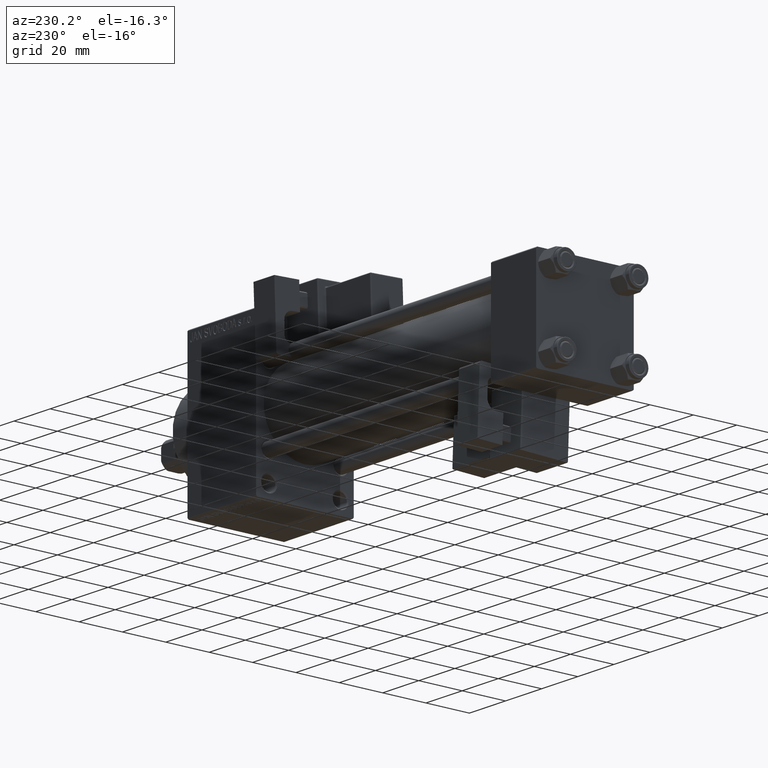
[diagram: clean part render]
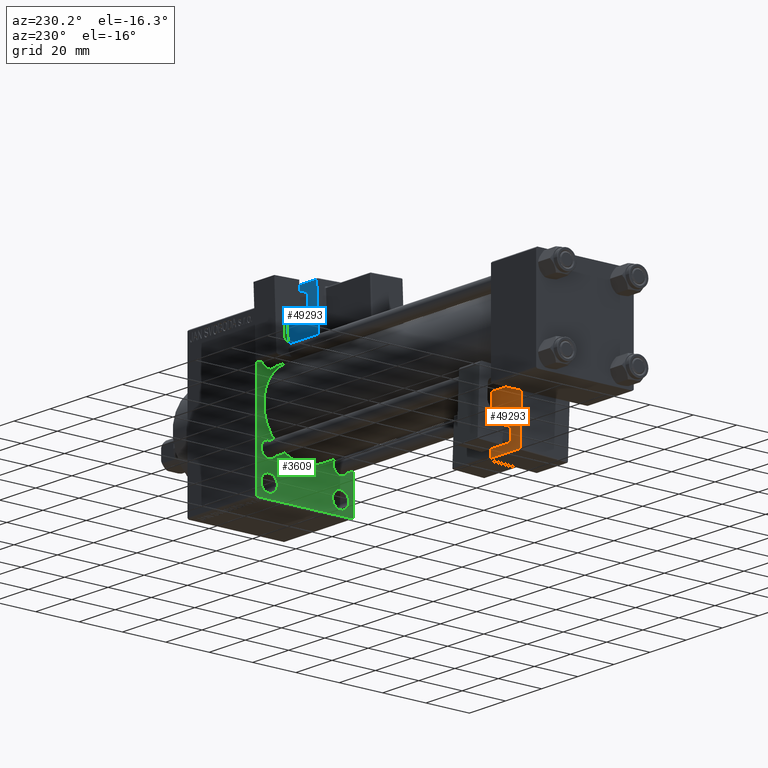
[diagram: same view with three faces highlighted in distinct colors, each labeled with its STEP entity id]
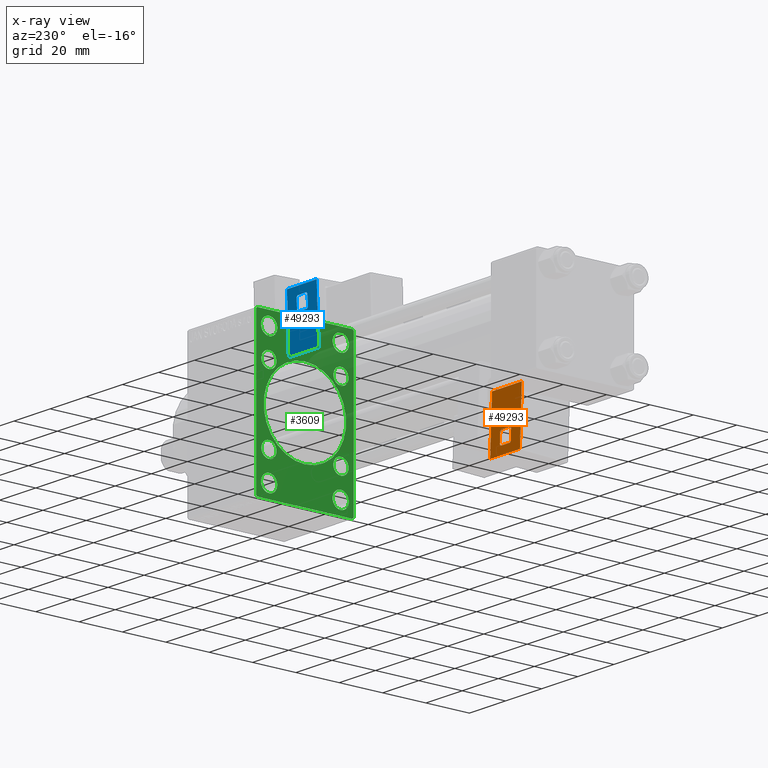
[diagram: x-ray of the same camera — body ghosted, the three highlighted faces saturated]
A machine part, auxiliary view with three faces highlighted in distinct colors.
The next image is the same camera in x-ray (body ghosted, the three faces saturated) — at least one of them is partly hidden behind the body in this view.
Their STEP definitions:

[orange] entity #49293 — the highlighted planar face has unit normal (0, 0.9994, 0.0353).
#77 = CARTESIAN_POINT ( 'NONE',  ( 8.750000000000000000, -11.75000000000000000, 24.49999999999999645 ) ) ;
#1164 = CARTESIAN_POINT ( 'NONE',  ( -3.000000000000000000, -11.75000000000000000, 3.500000000000022204 ) ) ;
#1455 = CARTESIAN_POINT ( 'NONE',  ( 3.000000000000000000, -11.75000000000000000, 8.500000000000000000 ) ) ;
#1975 = VECTOR ( 'NONE', #2006, 1000.000000000000000 ) ;
#2006 = DIRECTION ( 'NONE',  ( 0.000000000000000000, 0.000000000000000000, -1.000000000000000000 ) ) ;
#2221 = DIRECTION ( 'NONE',  ( 1.334402673828313093E-16, -0.000000000000000000, 1.000000000000000000 ) ) ;
#3006 = VECTOR ( 'NONE', #2221, 1000.000000000000000 ) ;
#3275 = FACE_OUTER_BOUND ( 'NONE', #39544, .T. ) ;
#3746 = CARTESIAN_POINT ( 'NONE',  ( -8.750000000000003553, -11.75000000000000000, -0.5000000000000002220 ) ) ;
#4682 = VERTEX_POINT ( 'NONE', #9760 ) ;
#5767 = CARTESIAN_POINT ( 'NONE',  ( -3.000000000000000000, -11.75000000000000000, 8.500000000000007105 ) ) ;
#6474 = VERTEX_POINT ( 'NONE', #35069 ) ;
#6721 = EDGE_CURVE ( 'NONE', #26137, #32866, #30774, .T. ) ;
#7799 = AXIS2_PLACEMENT_3D ( 'NONE', #21783, #44736, #15029 ) ;
#8461 = EDGE_CURVE ( 'NONE', #21969, #25839, #19092, .T. ) ;
#8873 = ORIENTED_EDGE ( 'NONE', *, *, #44061, .T. ) ;
#8908 = DIRECTION ( 'NONE',  ( -1.000000000000000000, 0.000000000000000000, 0.000000000000000000 ) ) ;
#9519 = DIRECTION ( 'NONE',  ( -0.7071067811865426878, -0.000000000000000000, 0.7071067811865524577 ) ) ;
#9760 = CARTESIAN_POINT ( 'NONE',  ( 2.500000000000006661, -11.75000000000000000, 9.000000000000001776 ) ) ;
#10228 = EDGE_CURVE ( 'NONE', #27489, #10450, #29478, .T. ) ;
#10450 = VERTEX_POINT ( 'NONE', #46942 ) ;
#10850 = EDGE_CURVE ( 'NONE', #32866, #19204, #29357, .T. ) ;
#11079 = CARTESIAN_POINT ( 'NONE',  ( 3.000000000000000888, -11.75000000000000000, 3.500000000000008438 ) ) ;
#11595 = DIRECTION ( 'NONE',  ( 0.7071067811865472397, -0.000000000000000000, -0.7071067811865479058 ) ) ;
#11704 = VERTEX_POINT ( 'NONE', #1164 ) ;
#11848 = LINE ( 'NONE', #33545, #29922 ) ;
#11868 = DIRECTION ( 'NONE',  ( 1.000000000000000000, -0.000000000000000000, 7.228014483236695816E-17 ) ) ;
#12002 = DIRECTION ( 'NONE',  ( -1.000000000000000000, 0.000000000000000000, -0.000000000000000000 ) ) ;
#12403 = LINE ( 'NONE', #32090, #36440 ) ;
#12490 = LINE ( 'NONE', #3746, #34774 ) ;
#12851 = ORIENTED_EDGE ( 'NONE', *, *, #21499, .T. ) ;
#14265 = DIRECTION ( 'NONE',  ( -0.7071067811865524577, 0.000000000000000000, -0.7071067811865426878 ) ) ;
#15029 = DIRECTION ( 'NONE',  ( 0.000000000000000000, -0.000000000000000000, 1.000000000000000000 ) ) ;
#15586 = VECTOR ( 'NONE', #11868, 1000.000000000000000 ) ;
#16317 = ORIENTED_EDGE ( 'NONE', *, *, #26459, .T. ) ;
#17162 = EDGE_CURVE ( 'NONE', #10450, #11704, #28496, .T. ) ;
#17421 = ORIENTED_EDGE ( 'NONE', *, *, #17162, .T. ) ;
#17883 = DIRECTION ( 'NONE',  ( -1.445602896647339163E-16, -0.000000000000000000, 1.000000000000000000 ) ) ;
#18582 = VECTOR ( 'NONE', #42027, 1000.000000000000000 ) ;
#19092 = LINE ( 'NONE', #77, #18582 ) ;
#19177 = CARTESIAN_POINT ( 'NONE',  ( 2.499999999999993339, -11.75000000000000000, 3.000000000000000888 ) ) ;
#19204 = VERTEX_POINT ( 'NONE', #1455 ) ;
#19505 = VECTOR ( 'NONE', #42485, 1000.000000000000000 ) ;
#19542 = LINE ( 'NONE', #26534, #19505 ) ;
#19819 = EDGE_CURVE ( 'NONE', #33664, #6474, #12490, .T. ) ;
#20710 = VECTOR ( 'NONE', #30523, 1000.000000000000114 ) ;
#20870 = ORIENTED_EDGE ( 'NONE', *, *, #38956, .T. ) ;
#21017 = CARTESIAN_POINT ( 'NONE',  ( -3.000000000000000000, -11.75000000000000000, 9.000000000000001776 ) ) ;
#21234 = LINE ( 'NONE', #36429, #3006 ) ;
#21499 = EDGE_CURVE ( 'NONE', #4682, #27489, #12403, .T. ) ;
#21783 = CARTESIAN_POINT ( 'NONE',  ( 0.000000000000000000, -11.75000000000000000, 0.000000000000000000 ) ) ;
#21969 = VERTEX_POINT ( 'NONE', #48009 ) ;
#23534 = CARTESIAN_POINT ( 'NONE',  ( -2.499999999999976907, -11.75000000000000000, 3.000000000000000444 ) ) ;
#24792 = CARTESIAN_POINT ( 'NONE',  ( -2.499999999999999556, -11.75000000000000000, 9.000000000000001776 ) ) ;
#25712 = VECTOR ( 'NONE', #17883, 1000.000000000000000 ) ;
#25839 = VERTEX_POINT ( 'NONE', #36210 ) ;
#26137 = VERTEX_POINT ( 'NONE', #19177 ) ;
#26459 = EDGE_CURVE ( 'NONE', #19204, #4682, #28475, .T. ) ;
#26534 = CARTESIAN_POINT ( 'NONE',  ( 8.250000000000003553, -11.75000000000000000, -1.000000000000000888 ) ) ;
#26833 = EDGE_CURVE ( 'NONE', #6474, #21969, #21234, .T. ) ;
#27489 = VERTEX_POINT ( 'NONE', #24792 ) ;
#28475 = LINE ( 'NONE', #43699, #40451 ) ;
#28496 = LINE ( 'NONE', #21017, #1975 ) ;
#28821 = CARTESIAN_POINT ( 'NONE',  ( 8.250000000000003553, -11.75000000000000000, -0.5000000000000002220 ) ) ;
#29357 = LINE ( 'NONE', #40083, #25712 ) ;
#29478 = LINE ( 'NONE', #5767, #36138 ) ;
#29738 = PLANE ( 'NONE',  #7799 ) ;
#29862 = VERTEX_POINT ( 'NONE', #23534 ) ;
#29922 = VECTOR ( 'NONE', #11595, 1000.000000000000000 ) ;
#30523 = DIRECTION ( 'NONE',  ( 0.7071067811865474617, -0.000000000000000000, 0.7071067811865474617 ) ) ;
#30530 = CARTESIAN_POINT ( 'NONE',  ( 3.000000000000000888, -11.75000000000000000, 3.500000000000008438 ) ) ;
#30774 = LINE ( 'NONE', #11079, #20710 ) ;
#30824 = LINE ( 'NONE', #46065, #15586 ) ;
#32090 = CARTESIAN_POINT ( 'NONE',  ( 3.000000000000000000, -11.75000000000000000, 9.000000000000001776 ) ) ;
#32866 = VERTEX_POINT ( 'NONE', #30530 ) ;
#33545 = CARTESIAN_POINT ( 'NONE',  ( -2.499999999999978684, -11.75000000000000000, 3.000000000000000444 ) ) ;
#33664 = VERTEX_POINT ( 'NONE', #28821 ) ;
#34774 = VECTOR ( 'NONE', #12002, 1000.000000000000000 ) ;
#35069 = CARTESIAN_POINT ( 'NONE',  ( -8.250000000000003553, -11.75000000000000000, -0.5000000000000002220 ) ) ;
#36138 = VECTOR ( 'NONE', #14265, 1000.000000000000000 ) ;
#36210 = CARTESIAN_POINT ( 'NONE',  ( 8.250000000000000000, -11.75000000000000000, 24.49999999999999645 ) ) ;
#36429 = CARTESIAN_POINT ( 'NONE',  ( -8.250000000000000000, -11.75000000000000000, 25.00000000000000000 ) ) ;
#36440 = VECTOR ( 'NONE', #8908, 1000.000000000000000 ) ;
#37774 = ORIENTED_EDGE ( 'NONE', *, *, #8461, .T. ) ;
#37840 = ORIENTED_EDGE ( 'NONE', *, *, #19819, .T. ) ;
#38566 = ORIENTED_EDGE ( 'NONE', *, *, #40607, .T. ) ;
#38956 = EDGE_CURVE ( 'NONE', #25839, #33664, #19542, .T. ) ;
#39544 = EDGE_LOOP ( 'NONE', ( #37840, #44919, #37774, #20870 ) ) ;
#40083 = CARTESIAN_POINT ( 'NONE',  ( 3.000000000000000000, -11.75000000000000000, 9.000000000000001776 ) ) ;
#40451 = VECTOR ( 'NONE', #9519, 1000.000000000000000 ) ;
#40607 = EDGE_CURVE ( 'NONE', #29862, #26137, #30824, .T. ) ;
#42027 = DIRECTION ( 'NONE',  ( 1.000000000000000000, -0.000000000000000000, -1.982541115402065110E-16 ) ) ;
#42485 = DIRECTION ( 'NONE',  ( 1.334402673828313339E-16, -0.000000000000000000, -1.000000000000000000 ) ) ;
#42561 = ORIENTED_EDGE ( 'NONE', *, *, #10850, .T. ) ;
#42939 = ORIENTED_EDGE ( 'NONE', *, *, #6721, .T. ) ;
#43676 = EDGE_LOOP ( 'NONE', ( #42561, #16317, #12851, #48562, #17421, #8873, #38566, #42939 ) ) ;
#43699 = CARTESIAN_POINT ( 'NONE',  ( 2.500000000000006661, -11.75000000000000000, 9.000000000000001776 ) ) ;
#44061 = EDGE_CURVE ( 'NONE', #11704, #29862, #11848, .T. ) ;
#44736 = DIRECTION ( 'NONE',  ( 0.000000000000000000, 1.000000000000000000, 0.000000000000000000 ) ) ;
#44919 = ORIENTED_EDGE ( 'NONE', *, *, #26833, .T. ) ;
#46065 = CARTESIAN_POINT ( 'NONE',  ( 3.000000000000000888, -11.75000000000000000, 3.000000000000000888 ) ) ;
#46942 = CARTESIAN_POINT ( 'NONE',  ( -3.000000000000000000, -11.75000000000000000, 8.500000000000007105 ) ) ;
#48009 = CARTESIAN_POINT ( 'NONE',  ( -8.250000000000000000, -11.75000000000000000, 24.50000000000000000 ) ) ;
#48562 = ORIENTED_EDGE ( 'NONE', *, *, #10228, .T. ) ;
#49233 = FACE_BOUND ( 'NONE', #43676, .T. ) ;
#49293 = ADVANCED_FACE ( 'NONE', ( #3275, #49233 ), #29738, .T. ) ;

[blue] entity #49293 — the highlighted planar face has unit normal (0, 0.9994, -0.0353).
#77 = CARTESIAN_POINT ( 'NONE',  ( 8.750000000000000000, -11.75000000000000000, 24.49999999999999645 ) ) ;
#1164 = CARTESIAN_POINT ( 'NONE',  ( -3.000000000000000000, -11.75000000000000000, 3.500000000000022204 ) ) ;
#1455 = CARTESIAN_POINT ( 'NONE',  ( 3.000000000000000000, -11.75000000000000000, 8.500000000000000000 ) ) ;
#1975 = VECTOR ( 'NONE', #2006, 1000.000000000000000 ) ;
#2006 = DIRECTION ( 'NONE',  ( 0.000000000000000000, 0.000000000000000000, -1.000000000000000000 ) ) ;
#2221 = DIRECTION ( 'NONE',  ( 1.334402673828313093E-16, -0.000000000000000000, 1.000000000000000000 ) ) ;
#3006 = VECTOR ( 'NONE', #2221, 1000.000000000000000 ) ;
#3275 = FACE_OUTER_BOUND ( 'NONE', #39544, .T. ) ;
#3746 = CARTESIAN_POINT ( 'NONE',  ( -8.750000000000003553, -11.75000000000000000, -0.5000000000000002220 ) ) ;
#4682 = VERTEX_POINT ( 'NONE', #9760 ) ;
#5767 = CARTESIAN_POINT ( 'NONE',  ( -3.000000000000000000, -11.75000000000000000, 8.500000000000007105 ) ) ;
#6474 = VERTEX_POINT ( 'NONE', #35069 ) ;
#6721 = EDGE_CURVE ( 'NONE', #26137, #32866, #30774, .T. ) ;
#7799 = AXIS2_PLACEMENT_3D ( 'NONE', #21783, #44736, #15029 ) ;
#8461 = EDGE_CURVE ( 'NONE', #21969, #25839, #19092, .T. ) ;
#8873 = ORIENTED_EDGE ( 'NONE', *, *, #44061, .T. ) ;
#8908 = DIRECTION ( 'NONE',  ( -1.000000000000000000, 0.000000000000000000, 0.000000000000000000 ) ) ;
#9519 = DIRECTION ( 'NONE',  ( -0.7071067811865426878, -0.000000000000000000, 0.7071067811865524577 ) ) ;
#9760 = CARTESIAN_POINT ( 'NONE',  ( 2.500000000000006661, -11.75000000000000000, 9.000000000000001776 ) ) ;
#10228 = EDGE_CURVE ( 'NONE', #27489, #10450, #29478, .T. ) ;
#10450 = VERTEX_POINT ( 'NONE', #46942 ) ;
#10850 = EDGE_CURVE ( 'NONE', #32866, #19204, #29357, .T. ) ;
#11079 = CARTESIAN_POINT ( 'NONE',  ( 3.000000000000000888, -11.75000000000000000, 3.500000000000008438 ) ) ;
#11595 = DIRECTION ( 'NONE',  ( 0.7071067811865472397, -0.000000000000000000, -0.7071067811865479058 ) ) ;
#11704 = VERTEX_POINT ( 'NONE', #1164 ) ;
#11848 = LINE ( 'NONE', #33545, #29922 ) ;
#11868 = DIRECTION ( 'NONE',  ( 1.000000000000000000, -0.000000000000000000, 7.228014483236695816E-17 ) ) ;
#12002 = DIRECTION ( 'NONE',  ( -1.000000000000000000, 0.000000000000000000, -0.000000000000000000 ) ) ;
#12403 = LINE ( 'NONE', #32090, #36440 ) ;
#12490 = LINE ( 'NONE', #3746, #34774 ) ;
#12851 = ORIENTED_EDGE ( 'NONE', *, *, #21499, .T. ) ;
#14265 = DIRECTION ( 'NONE',  ( -0.7071067811865524577, 0.000000000000000000, -0.7071067811865426878 ) ) ;
#15029 = DIRECTION ( 'NONE',  ( 0.000000000000000000, -0.000000000000000000, 1.000000000000000000 ) ) ;
#15586 = VECTOR ( 'NONE', #11868, 1000.000000000000000 ) ;
#16317 = ORIENTED_EDGE ( 'NONE', *, *, #26459, .T. ) ;
#17162 = EDGE_CURVE ( 'NONE', #10450, #11704, #28496, .T. ) ;
#17421 = ORIENTED_EDGE ( 'NONE', *, *, #17162, .T. ) ;
#17883 = DIRECTION ( 'NONE',  ( -1.445602896647339163E-16, -0.000000000000000000, 1.000000000000000000 ) ) ;
#18582 = VECTOR ( 'NONE', #42027, 1000.000000000000000 ) ;
#19092 = LINE ( 'NONE', #77, #18582 ) ;
#19177 = CARTESIAN_POINT ( 'NONE',  ( 2.499999999999993339, -11.75000000000000000, 3.000000000000000888 ) ) ;
#19204 = VERTEX_POINT ( 'NONE', #1455 ) ;
#19505 = VECTOR ( 'NONE', #42485, 1000.000000000000000 ) ;
#19542 = LINE ( 'NONE', #26534, #19505 ) ;
#19819 = EDGE_CURVE ( 'NONE', #33664, #6474, #12490, .T. ) ;
#20710 = VECTOR ( 'NONE', #30523, 1000.000000000000114 ) ;
#20870 = ORIENTED_EDGE ( 'NONE', *, *, #38956, .T. ) ;
#21017 = CARTESIAN_POINT ( 'NONE',  ( -3.000000000000000000, -11.75000000000000000, 9.000000000000001776 ) ) ;
#21234 = LINE ( 'NONE', #36429, #3006 ) ;
#21499 = EDGE_CURVE ( 'NONE', #4682, #27489, #12403, .T. ) ;
#21783 = CARTESIAN_POINT ( 'NONE',  ( 0.000000000000000000, -11.75000000000000000, 0.000000000000000000 ) ) ;
#21969 = VERTEX_POINT ( 'NONE', #48009 ) ;
#23534 = CARTESIAN_POINT ( 'NONE',  ( -2.499999999999976907, -11.75000000000000000, 3.000000000000000444 ) ) ;
#24792 = CARTESIAN_POINT ( 'NONE',  ( -2.499999999999999556, -11.75000000000000000, 9.000000000000001776 ) ) ;
#25712 = VECTOR ( 'NONE', #17883, 1000.000000000000000 ) ;
#25839 = VERTEX_POINT ( 'NONE', #36210 ) ;
#26137 = VERTEX_POINT ( 'NONE', #19177 ) ;
#26459 = EDGE_CURVE ( 'NONE', #19204, #4682, #28475, .T. ) ;
#26534 = CARTESIAN_POINT ( 'NONE',  ( 8.250000000000003553, -11.75000000000000000, -1.000000000000000888 ) ) ;
#26833 = EDGE_CURVE ( 'NONE', #6474, #21969, #21234, .T. ) ;
#27489 = VERTEX_POINT ( 'NONE', #24792 ) ;
#28475 = LINE ( 'NONE', #43699, #40451 ) ;
#28496 = LINE ( 'NONE', #21017, #1975 ) ;
#28821 = CARTESIAN_POINT ( 'NONE',  ( 8.250000000000003553, -11.75000000000000000, -0.5000000000000002220 ) ) ;
#29357 = LINE ( 'NONE', #40083, #25712 ) ;
#29478 = LINE ( 'NONE', #5767, #36138 ) ;
#29738 = PLANE ( 'NONE',  #7799 ) ;
#29862 = VERTEX_POINT ( 'NONE', #23534 ) ;
#29922 = VECTOR ( 'NONE', #11595, 1000.000000000000000 ) ;
#30523 = DIRECTION ( 'NONE',  ( 0.7071067811865474617, -0.000000000000000000, 0.7071067811865474617 ) ) ;
#30530 = CARTESIAN_POINT ( 'NONE',  ( 3.000000000000000888, -11.75000000000000000, 3.500000000000008438 ) ) ;
#30774 = LINE ( 'NONE', #11079, #20710 ) ;
#30824 = LINE ( 'NONE', #46065, #15586 ) ;
#32090 = CARTESIAN_POINT ( 'NONE',  ( 3.000000000000000000, -11.75000000000000000, 9.000000000000001776 ) ) ;
#32866 = VERTEX_POINT ( 'NONE', #30530 ) ;
#33545 = CARTESIAN_POINT ( 'NONE',  ( -2.499999999999978684, -11.75000000000000000, 3.000000000000000444 ) ) ;
#33664 = VERTEX_POINT ( 'NONE', #28821 ) ;
#34774 = VECTOR ( 'NONE', #12002, 1000.000000000000000 ) ;
#35069 = CARTESIAN_POINT ( 'NONE',  ( -8.250000000000003553, -11.75000000000000000, -0.5000000000000002220 ) ) ;
#36138 = VECTOR ( 'NONE', #14265, 1000.000000000000000 ) ;
#36210 = CARTESIAN_POINT ( 'NONE',  ( 8.250000000000000000, -11.75000000000000000, 24.49999999999999645 ) ) ;
#36429 = CARTESIAN_POINT ( 'NONE',  ( -8.250000000000000000, -11.75000000000000000, 25.00000000000000000 ) ) ;
#36440 = VECTOR ( 'NONE', #8908, 1000.000000000000000 ) ;
#37774 = ORIENTED_EDGE ( 'NONE', *, *, #8461, .T. ) ;
#37840 = ORIENTED_EDGE ( 'NONE', *, *, #19819, .T. ) ;
#38566 = ORIENTED_EDGE ( 'NONE', *, *, #40607, .T. ) ;
#38956 = EDGE_CURVE ( 'NONE', #25839, #33664, #19542, .T. ) ;
#39544 = EDGE_LOOP ( 'NONE', ( #37840, #44919, #37774, #20870 ) ) ;
#40083 = CARTESIAN_POINT ( 'NONE',  ( 3.000000000000000000, -11.75000000000000000, 9.000000000000001776 ) ) ;
#40451 = VECTOR ( 'NONE', #9519, 1000.000000000000000 ) ;
#40607 = EDGE_CURVE ( 'NONE', #29862, #26137, #30824, .T. ) ;
#42027 = DIRECTION ( 'NONE',  ( 1.000000000000000000, -0.000000000000000000, -1.982541115402065110E-16 ) ) ;
#42485 = DIRECTION ( 'NONE',  ( 1.334402673828313339E-16, -0.000000000000000000, -1.000000000000000000 ) ) ;
#42561 = ORIENTED_EDGE ( 'NONE', *, *, #10850, .T. ) ;
#42939 = ORIENTED_EDGE ( 'NONE', *, *, #6721, .T. ) ;
#43676 = EDGE_LOOP ( 'NONE', ( #42561, #16317, #12851, #48562, #17421, #8873, #38566, #42939 ) ) ;
#43699 = CARTESIAN_POINT ( 'NONE',  ( 2.500000000000006661, -11.75000000000000000, 9.000000000000001776 ) ) ;
#44061 = EDGE_CURVE ( 'NONE', #11704, #29862, #11848, .T. ) ;
#44736 = DIRECTION ( 'NONE',  ( 0.000000000000000000, 1.000000000000000000, 0.000000000000000000 ) ) ;
#44919 = ORIENTED_EDGE ( 'NONE', *, *, #26833, .T. ) ;
#46065 = CARTESIAN_POINT ( 'NONE',  ( 3.000000000000000888, -11.75000000000000000, 3.000000000000000888 ) ) ;
#46942 = CARTESIAN_POINT ( 'NONE',  ( -3.000000000000000000, -11.75000000000000000, 8.500000000000007105 ) ) ;
#48009 = CARTESIAN_POINT ( 'NONE',  ( -8.250000000000000000, -11.75000000000000000, 24.50000000000000000 ) ) ;
#48562 = ORIENTED_EDGE ( 'NONE', *, *, #10228, .T. ) ;
#49233 = FACE_BOUND ( 'NONE', #43676, .T. ) ;
#49293 = ADVANCED_FACE ( 'NONE', ( #3275, #49233 ), #29738, .T. ) ;

[green] entity #3609 — the highlighted planar face has unit normal (-1, 0, 0).
#46 = CARTESIAN_POINT ( 'NONE',  ( 155.0000000000000000, -16.50000000000000000, -28.99999999999999289 ) ) ;
#200 = CIRCLE ( 'NONE', #7416, 3.749999999999923617 ) ;
#316 = VERTEX_POINT ( 'NONE', #39200 ) ;
#522 = CARTESIAN_POINT ( 'NONE',  ( 155.0000000000000000, 16.50000000000000000, -32.74999999999991473 ) ) ;
#867 = DIRECTION ( 'NONE',  ( 0.000000000000000000, -1.000000000000000000, 0.000000000000000000 ) ) ;
#1219 = AXIS2_PLACEMENT_3D ( 'NONE', #48557, #36553, #40045 ) ;
#1334 = DIRECTION ( 'NONE',  ( -0.000000000000000000, 0.000000000000000000, 1.000000000000000000 ) ) ;
#1380 = CARTESIAN_POINT ( 'NONE',  ( 155.0000000000000000, 28.49999999999999645, -28.49999999999999645 ) ) ;
#1439 = AXIS2_PLACEMENT_3D ( 'NONE', #31179, #4456, #23705 ) ;
#1572 = AXIS2_PLACEMENT_3D ( 'NONE', #3186, #13948, #14199 ) ;
#1583 = FACE_BOUND ( 'NONE', #7346, .T. ) ;
#1760 = LINE ( 'NONE', #35736, #10634 ) ;
#1921 = EDGE_CURVE ( 'NONE', #30669, #19883, #6292, .T. ) ;
#2059 = FACE_BOUND ( 'NONE', #26085, .T. ) ;
#2477 = ORIENTED_EDGE ( 'NONE', *, *, #38392, .T. ) ;
#2478 = CARTESIAN_POINT ( 'NONE',  ( 155.0000000000000000, -16.59999999999999076, -20.10000000000001208 ) ) ;
#2531 = VERTEX_POINT ( 'NONE', #46556 ) ;
#2624 = EDGE_CURVE ( 'NONE', #2531, #316, #40245, .T. ) ;
#3186 = CARTESIAN_POINT ( 'NONE',  ( 155.0000000000000000, -16.50000000000000000, 29.00000000000000711 ) ) ;
#3321 = ORIENTED_EDGE ( 'NONE', *, *, #8539, .T. ) ;
#3322 = VERTEX_POINT ( 'NONE', #8738 ) ;
#3425 = ORIENTED_EDGE ( 'NONE', *, *, #2624, .T. ) ;
#3435 = EDGE_CURVE ( 'NONE', #19883, #30669, #23138, .T. ) ;
#3518 = CIRCLE ( 'NONE', #45805, 3.500000000000006661 ) ;
#3609 = ADVANCED_FACE ( 'NONE', ( #20588, #9829, #2059, #40251, #35797, #28795, #32042, #36517, #1583, #47544 ), #16838, .T. ) ;
#3614 = EDGE_CURVE ( 'NONE', #13554, #23283, #30275, .T. ) ;
#3722 = VERTEX_POINT ( 'NONE', #26531 ) ;
#3824 = VERTEX_POINT ( 'NONE', #12546 ) ;
#3933 = VECTOR ( 'NONE', #39516, 1000.000000000000114 ) ;
#3979 = AXIS2_PLACEMENT_3D ( 'NONE', #26128, #38325, #39242 ) ;
#4236 = VECTOR ( 'NONE', #44970, 1000.000000000000114 ) ;
#4294 = EDGE_CURVE ( 'NONE', #3322, #3722, #15931, .T. ) ;
#4400 = EDGE_CURVE ( 'NONE', #18774, #24965, #38249, .T. ) ;
#4456 = DIRECTION ( 'NONE',  ( 1.000000000000000000, 0.000000000000000000, 0.000000000000000000 ) ) ;
#4521 = ORIENTED_EDGE ( 'NONE', *, *, #44012, .T. ) ;
#5061 = ORIENTED_EDGE ( 'NONE', *, *, #1921, .T. ) ;
#5362 = CARTESIAN_POINT ( 'NONE',  ( 155.0000000000000000, 16.59999999999999787, 16.60000000000000497 ) ) ;
#5416 = DIRECTION ( 'NONE',  ( 1.000000000000000000, 0.000000000000000000, 0.000000000000000000 ) ) ;
#5583 = CARTESIAN_POINT ( 'NONE',  ( 155.0000000000000000, 16.59999999999999787, -16.60000000000000497 ) ) ;
#5970 = ORIENTED_EDGE ( 'NONE', *, *, #31470, .T. ) ;
#6292 = CIRCLE ( 'NONE', #21454, 3.749999999999916511 ) ;
#6875 = EDGE_LOOP ( 'NONE', ( #21478, #33245, #27174, #20157, #18962, #3425, #47339, #29860 ) ) ;
#7156 = AXIS2_PLACEMENT_3D ( 'NONE', #24575, #32283, #1334 ) ;
#7346 = EDGE_LOOP ( 'NONE', ( #30693, #3321 ) ) ;
#7416 = AXIS2_PLACEMENT_3D ( 'NONE', #37229, #10796, #26026 ) ;
#7466 = ORIENTED_EDGE ( 'NONE', *, *, #31629, .T. ) ;
#8124 = VERTEX_POINT ( 'NONE', #28098 ) ;
#8539 = EDGE_CURVE ( 'NONE', #45179, #19566, #32879, .T. ) ;
#8600 = EDGE_CURVE ( 'NONE', #24965, #18774, #200, .T. ) ;
#8738 = CARTESIAN_POINT ( 'NONE',  ( 155.0000000000000000, 16.59999999999999787, 13.09999999999999609 ) ) ;
#9060 = CARTESIAN_POINT ( 'NONE',  ( 155.0000000000000000, -16.50000000000000000, -32.74999999999991473 ) ) ;
#9336 = DIRECTION ( 'NONE',  ( 0.000000000000000000, 0.000000000000000000, 1.000000000000000000 ) ) ;
#9596 = DIRECTION ( 'NONE',  ( 0.000000000000000000, 0.000000000000000000, 1.000000000000000000 ) ) ;
#9722 = CARTESIAN_POINT ( 'NONE',  ( 155.0000000000000000, -16.50000000000000000, 25.25000000000009237 ) ) ;
#9829 = FACE_BOUND ( 'NONE', #22836, .T. ) ;
#10177 = LINE ( 'NONE', #44855, #25123 ) ;
#10186 = EDGE_CURVE ( 'NONE', #316, #18834, #1760, .T. ) ;
#10470 = ORIENTED_EDGE ( 'NONE', *, *, #32521, .T. ) ;
#10634 = VECTOR ( 'NONE', #22867, 1000.000000000000000 ) ;
#10796 = DIRECTION ( 'NONE',  ( 1.000000000000000000, 0.000000000000000000, 0.000000000000000000 ) ) ;
#10991 = CIRCLE ( 'NONE', #41243, 3.500000000000003109 ) ;
#11006 = DIRECTION ( 'NONE',  ( 1.000000000000000000, 0.000000000000000000, 0.000000000000000000 ) ) ;
#11061 = DIRECTION ( 'NONE',  ( 1.000000000000000000, 0.000000000000000000, 0.000000000000000000 ) ) ;
#11894 = CARTESIAN_POINT ( 'NONE',  ( 155.0000000000000000, 22.49999999999999645, -35.00000000000000000 ) ) ;
#12546 = CARTESIAN_POINT ( 'NONE',  ( 155.0000000000000000, 16.50000000000000000, 25.25000000000008882 ) ) ;
#12806 = CARTESIAN_POINT ( 'NONE',  ( 155.0000000000000000, -16.59999999999999076, 20.10000000000001208 ) ) ;
#12957 = AXIS2_PLACEMENT_3D ( 'NONE', #20915, #5416, #24172 ) ;
#13165 = EDGE_CURVE ( 'NONE', #8124, #14160, #16191, .T. ) ;
#13346 = CARTESIAN_POINT ( 'NONE',  ( 155.0000000000000000, -22.50000000000000355, -34.50000000000000000 ) ) ;
#13381 = VERTEX_POINT ( 'NONE', #13535 ) ;
#13445 = CIRCLE ( 'NONE', #1439, 3.500000000000006661 ) ;
#13535 = CARTESIAN_POINT ( 'NONE',  ( 155.0000000000000000, 16.50000000000000000, 32.74999999999991473 ) ) ;
#13554 = VERTEX_POINT ( 'NONE', #20963 ) ;
#13948 = DIRECTION ( 'NONE',  ( 1.000000000000000000, 0.000000000000000000, 0.000000000000000000 ) ) ;
#13963 = DIRECTION ( 'NONE',  ( 0.000000000000000000, -1.000000000000000000, 0.000000000000000000 ) ) ;
#14101 = ORIENTED_EDGE ( 'NONE', *, *, #4400, .T. ) ;
#14160 = VERTEX_POINT ( 'NONE', #9060 ) ;
#14199 = DIRECTION ( 'NONE',  ( 0.000000000000000000, 0.000000000000000000, 1.000000000000000000 ) ) ;
#14793 = CIRCLE ( 'NONE', #1219, 3.500000000000003109 ) ;
#15344 = CARTESIAN_POINT ( 'NONE',  ( 155.0000000000000000, -2.752562955852396712E-16, -19.00000000000000000 ) ) ;
#15931 = CIRCLE ( 'NONE', #28673, 3.500000000000006661 ) ;
#16191 = CIRCLE ( 'NONE', #47313, 3.749999999999923617 ) ;
#16394 = EDGE_LOOP ( 'NONE', ( #4521, #43740 ) ) ;
#16838 = PLANE ( 'NONE',  #7156 ) ;
#17115 = EDGE_LOOP ( 'NONE', ( #2477, #27779 ) ) ;
#17396 = DIRECTION ( 'NONE',  ( 0.000000000000000000, 0.000000000000000000, 1.000000000000000000 ) ) ;
#17766 = VERTEX_POINT ( 'NONE', #22688 ) ;
#17782 = VECTOR ( 'NONE', #37773, 1000.000000000000000 ) ;
#18015 = DIRECTION ( 'NONE',  ( 1.000000000000000000, 0.000000000000000000, 0.000000000000000000 ) ) ;
#18514 = CARTESIAN_POINT ( 'NONE',  ( 155.0000000000000000, -28.49999999999999645, 28.49999999999999645 ) ) ;
#18581 = ORIENTED_EDGE ( 'NONE', *, *, #3435, .T. ) ;
#18757 = LINE ( 'NONE', #18514, #4236 ) ;
#18774 = VERTEX_POINT ( 'NONE', #36993 ) ;
#18834 = VERTEX_POINT ( 'NONE', #22304 ) ;
#18962 = ORIENTED_EDGE ( 'NONE', *, *, #34896, .F. ) ;
#19070 = LINE ( 'NONE', #45029, #17782 ) ;
#19146 = CIRCLE ( 'NONE', #3979, 3.749999999999920064 ) ;
#19332 = ORIENTED_EDGE ( 'NONE', *, *, #33360, .T. ) ;
#19566 = VERTEX_POINT ( 'NONE', #29091 ) ;
#19883 = VERTEX_POINT ( 'NONE', #9722 ) ;
#20157 = ORIENTED_EDGE ( 'NONE', *, *, #35859, .T. ) ;
#20228 = CARTESIAN_POINT ( 'NONE',  ( 155.0000000000000000, 22.49999999999999645, 35.00000000000000000 ) ) ;
#20588 = FACE_BOUND ( 'NONE', #24101, .T. ) ;
#20618 = DIRECTION ( 'NONE',  ( 0.000000000000000000, 0.000000000000000000, 1.000000000000000000 ) ) ;
#20915 = CARTESIAN_POINT ( 'NONE',  ( 155.0000000000000000, -16.50000000000000000, -28.99999999999999289 ) ) ;
#20963 = CARTESIAN_POINT ( 'NONE',  ( 155.0000000000000000, 16.59999999999999787, -20.10000000000000853 ) ) ;
#21355 = CIRCLE ( 'NONE', #27722, 3.500000000000006661 ) ;
#21454 = AXIS2_PLACEMENT_3D ( 'NONE', #25289, #48256, #25543 ) ;
#21478 = ORIENTED_EDGE ( 'NONE', *, *, #32702, .T. ) ;
#21823 = DIRECTION ( 'NONE',  ( 0.000000000000000000, 0.000000000000000000, 1.000000000000000000 ) ) ;
#22254 = AXIS2_PLACEMENT_3D ( 'NONE', #35108, #26887, #23402 ) ;
#22304 = CARTESIAN_POINT ( 'NONE',  ( 155.0000000000000000, 22.49999999999999645, -34.50000000000000000 ) ) ;
#22688 = CARTESIAN_POINT ( 'NONE',  ( 155.0000000000000000, -21.99999999999998934, -35.00000000000000000 ) ) ;
#22836 = EDGE_LOOP ( 'NONE', ( #22865, #19332 ) ) ;
#22865 = ORIENTED_EDGE ( 'NONE', *, *, #13165, .T. ) ;
#22867 = DIRECTION ( 'NONE',  ( 0.000000000000000000, 0.000000000000000000, -1.000000000000000000 ) ) ;
#22985 = CARTESIAN_POINT ( 'NONE',  ( 155.0000000000000000, 16.59999999999999787, -16.60000000000000497 ) ) ;
#23138 = CIRCLE ( 'NONE', #1572, 3.749999999999916511 ) ;
#23283 = VERTEX_POINT ( 'NONE', #33932 ) ;
#23375 = AXIS2_PLACEMENT_3D ( 'NONE', #27795, #43016, #24067 ) ;
#23402 = DIRECTION ( 'NONE',  ( 0.000000000000000000, 0.000000000000000000, -1.000000000000000000 ) ) ;
#23705 = DIRECTION ( 'NONE',  ( 0.000000000000000000, 0.000000000000000000, 1.000000000000000000 ) ) ;
#23971 = ORIENTED_EDGE ( 'NONE', *, *, #27925, .T. ) ;
#24067 = DIRECTION ( 'NONE',  ( 0.000000000000000000, 0.000000000000000000, -1.000000000000000000 ) ) ;
#24101 = EDGE_LOOP ( 'NONE', ( #5061, #18581 ) ) ;
#24172 = DIRECTION ( 'NONE',  ( 0.000000000000000000, 0.000000000000000000, 1.000000000000000000 ) ) ;
#24575 = CARTESIAN_POINT ( 'NONE',  ( 155.0000000000000000, 0.000000000000000000, 0.000000000000000000 ) ) ;
#24744 = DIRECTION ( 'NONE',  ( 0.000000000000000000, 0.000000000000000000, 1.000000000000000000 ) ) ;
#24965 = VERTEX_POINT ( 'NONE', #522 ) ;
#25123 = VECTOR ( 'NONE', #25893, 1000.000000000000114 ) ;
#25226 = CARTESIAN_POINT ( 'NONE',  ( 155.0000000000000000, -16.59999999999999076, 16.60000000000000853 ) ) ;
#25289 = CARTESIAN_POINT ( 'NONE',  ( 155.0000000000000000, -16.50000000000000000, 29.00000000000000711 ) ) ;
#25515 = AXIS2_PLACEMENT_3D ( 'NONE', #5583, #43778, #9596 ) ;
#25543 = DIRECTION ( 'NONE',  ( 0.000000000000000000, 0.000000000000000000, 1.000000000000000000 ) ) ;
#25870 = VERTEX_POINT ( 'NONE', #31981 ) ;
#25893 = DIRECTION ( 'NONE',  ( 0.000000000000000000, -0.7071067811865474617, 0.7071067811865474617 ) ) ;
#26026 = DIRECTION ( 'NONE',  ( 0.000000000000000000, 0.000000000000000000, 1.000000000000000000 ) ) ;
#26085 = EDGE_LOOP ( 'NONE', ( #14101, #32189 ) ) ;
#26128 = CARTESIAN_POINT ( 'NONE',  ( 155.0000000000000000, 16.50000000000000000, 29.00000000000000355 ) ) ;
#26293 = AXIS2_PLACEMENT_3D ( 'NONE', #45247, #11061, #33742 ) ;
#26315 = VERTEX_POINT ( 'NONE', #2478 ) ;
#26358 = EDGE_CURVE ( 'NONE', #39258, #42102, #10991, .T. ) ;
#26531 = CARTESIAN_POINT ( 'NONE',  ( 155.0000000000000000, 16.59999999999999787, 20.10000000000001208 ) ) ;
#26887 = DIRECTION ( 'NONE',  ( 1.000000000000000000, 0.000000000000000000, 0.000000000000000000 ) ) ;
#27174 = ORIENTED_EDGE ( 'NONE', *, *, #35487, .F. ) ;
#27607 = EDGE_LOOP ( 'NONE', ( #5970, #7466 ) ) ;
#27722 = AXIS2_PLACEMENT_3D ( 'NONE', #5362, #40282, #20618 ) ;
#27779 = ORIENTED_EDGE ( 'NONE', *, *, #3614, .T. ) ;
#27795 = CARTESIAN_POINT ( 'NONE',  ( 155.0000000000000000, -2.602085213965210642E-15, 0.000000000000000000 ) ) ;
#27925 = EDGE_CURVE ( 'NONE', #25870, #26315, #13445, .T. ) ;
#28098 = CARTESIAN_POINT ( 'NONE',  ( 155.0000000000000000, -16.50000000000000000, -25.25000000000007105 ) ) ;
#28474 = EDGE_CURVE ( 'NONE', #18834, #33571, #35588, .T. ) ;
#28542 = CARTESIAN_POINT ( 'NONE',  ( 155.0000000000000000, 28.49999999999999645, 28.49999999999999645 ) ) ;
#28673 = AXIS2_PLACEMENT_3D ( 'NONE', #34863, #42599, #9336 ) ;
#28795 = FACE_BOUND ( 'NONE', #45778, .T. ) ;
#29091 = CARTESIAN_POINT ( 'NONE',  ( 155.0000000000000000, -2.602085213965210642E-15, 19.00000000000000000 ) ) ;
#29202 = EDGE_CURVE ( 'NONE', #19566, #45179, #30207, .T. ) ;
#29495 = CARTESIAN_POINT ( 'NONE',  ( 155.0000000000000000, 16.50000000000000000, 29.00000000000000355 ) ) ;
#29566 = CIRCLE ( 'NONE', #43896, 3.500000000000006661 ) ;
#29687 = CIRCLE ( 'NONE', #12957, 3.749999999999923617 ) ;
#29860 = ORIENTED_EDGE ( 'NONE', *, *, #28474, .T. ) ;
#29978 = DIRECTION ( 'NONE',  ( 0.000000000000000000, 0.000000000000000000, 1.000000000000000000 ) ) ;
#30207 = CIRCLE ( 'NONE', #22254, 19.00000000000000000 ) ;
#30275 = CIRCLE ( 'NONE', #25515, 3.500000000000006661 ) ;
#30669 = VERTEX_POINT ( 'NONE', #42493 ) ;
#30693 = ORIENTED_EDGE ( 'NONE', *, *, #29202, .T. ) ;
#30846 = LINE ( 'NONE', #11894, #38324 ) ;
#30999 = VECTOR ( 'NONE', #47101, 1000.000000000000114 ) ;
#31179 = CARTESIAN_POINT ( 'NONE',  ( 155.0000000000000000, -16.59999999999999076, -16.60000000000000853 ) ) ;
#31470 = EDGE_CURVE ( 'NONE', #13381, #3824, #19146, .T. ) ;
#31629 = EDGE_CURVE ( 'NONE', #3824, #13381, #47867, .T. ) ;
#31899 = ORIENTED_EDGE ( 'NONE', *, *, #4294, .T. ) ;
#31981 = CARTESIAN_POINT ( 'NONE',  ( 155.0000000000000000, -16.59999999999999076, -13.10000000000000142 ) ) ;
#32042 = FACE_BOUND ( 'NONE', #17115, .T. ) ;
#32189 = ORIENTED_EDGE ( 'NONE', *, *, #8600, .T. ) ;
#32283 = DIRECTION ( 'NONE',  ( -1.000000000000000000, 0.000000000000000000, -0.000000000000000000 ) ) ;
#32521 = EDGE_CURVE ( 'NONE', #26315, #25870, #29566, .T. ) ;
#32593 = EDGE_LOOP ( 'NONE', ( #23971, #10470 ) ) ;
#32702 = EDGE_CURVE ( 'NONE', #33571, #17766, #30846, .T. ) ;
#32879 = CIRCLE ( 'NONE', #23375, 19.00000000000000000 ) ;
#33245 = ORIENTED_EDGE ( 'NONE', *, *, #43745, .T. ) ;
#33360 = EDGE_CURVE ( 'NONE', #14160, #8124, #29687, .T. ) ;
#33571 = VERTEX_POINT ( 'NONE', #49348 ) ;
#33742 = DIRECTION ( 'NONE',  ( 0.000000000000000000, 0.000000000000000000, 1.000000000000000000 ) ) ;
#33760 = DIRECTION ( 'NONE',  ( 1.000000000000000000, 0.000000000000000000, 0.000000000000000000 ) ) ;
#33932 = CARTESIAN_POINT ( 'NONE',  ( 155.0000000000000000, 16.59999999999999787, -13.09999999999999787 ) ) ;
#34487 = VECTOR ( 'NONE', #13963, 1000.000000000000000 ) ;
#34863 = CARTESIAN_POINT ( 'NONE',  ( 155.0000000000000000, 16.59999999999999787, 16.60000000000000497 ) ) ;
#34896 = EDGE_CURVE ( 'NONE', #2531, #41290, #39181, .T. ) ;
#35003 = CARTESIAN_POINT ( 'NONE',  ( 155.0000000000000000, -21.99999999999998934, 35.00000000000000000 ) ) ;
#35108 = CARTESIAN_POINT ( 'NONE',  ( 155.0000000000000000, -2.602085213965210642E-15, 0.000000000000000000 ) ) ;
#35131 = CARTESIAN_POINT ( 'NONE',  ( 155.0000000000000000, -16.59999999999999076, -16.60000000000000853 ) ) ;
#35487 = EDGE_CURVE ( 'NONE', #36439, #41162, #19070, .T. ) ;
#35588 = LINE ( 'NONE', #1380, #30999 ) ;
#35736 = CARTESIAN_POINT ( 'NONE',  ( 155.0000000000000000, 22.49999999999999645, 35.00000000000000000 ) ) ;
#35797 = FACE_BOUND ( 'NONE', #16394, .T. ) ;
#35859 = EDGE_CURVE ( 'NONE', #36439, #41290, #18757, .T. ) ;
#36439 = VERTEX_POINT ( 'NONE', #38393 ) ;
#36517 = FACE_BOUND ( 'NONE', #32593, .T. ) ;
#36553 = DIRECTION ( 'NONE',  ( 1.000000000000000000, 0.000000000000000000, 0.000000000000000000 ) ) ;
#36681 = AXIS2_PLACEMENT_3D ( 'NONE', #29495, #18015, #29978 ) ;
#36686 = DIRECTION ( 'NONE',  ( 1.000000000000000000, 0.000000000000000000, 0.000000000000000000 ) ) ;
#36993 = CARTESIAN_POINT ( 'NONE',  ( 155.0000000000000000, 16.50000000000000000, -25.25000000000007105 ) ) ;
#37157 = ORIENTED_EDGE ( 'NONE', *, *, #48900, .T. ) ;
#37229 = CARTESIAN_POINT ( 'NONE',  ( 155.0000000000000000, 16.50000000000000000, -28.99999999999999289 ) ) ;
#37773 = DIRECTION ( 'NONE',  ( 0.000000000000000000, 0.000000000000000000, -1.000000000000000000 ) ) ;
#38249 = CIRCLE ( 'NONE', #26293, 3.749999999999923617 ) ;
#38324 = VECTOR ( 'NONE', #867, 1000.000000000000000 ) ;
#38325 = DIRECTION ( 'NONE',  ( 1.000000000000000000, 0.000000000000000000, 0.000000000000000000 ) ) ;
#38392 = EDGE_CURVE ( 'NONE', #23283, #13554, #3518, .T. ) ;
#38393 = CARTESIAN_POINT ( 'NONE',  ( 155.0000000000000000, -22.50000000000000355, 34.50000000000000000 ) ) ;
#39181 = LINE ( 'NONE', #20228, #34487 ) ;
#39200 = CARTESIAN_POINT ( 'NONE',  ( 155.0000000000000000, 22.49999999999999645, 34.50000000000000000 ) ) ;
#39242 = DIRECTION ( 'NONE',  ( 0.000000000000000000, 0.000000000000000000, 1.000000000000000000 ) ) ;
#39258 = VERTEX_POINT ( 'NONE', #49208 ) ;
#39516 = DIRECTION ( 'NONE',  ( 0.000000000000000000, 0.7071067811865474617, -0.7071067811865474617 ) ) ;
#40045 = DIRECTION ( 'NONE',  ( 0.000000000000000000, 0.000000000000000000, 1.000000000000000000 ) ) ;
#40245 = LINE ( 'NONE', #28542, #3933 ) ;
#40251 = FACE_BOUND ( 'NONE', #27607, .T. ) ;
#40282 = DIRECTION ( 'NONE',  ( 1.000000000000000000, 0.000000000000000000, 0.000000000000000000 ) ) ;
#41162 = VERTEX_POINT ( 'NONE', #13346 ) ;
#41243 = AXIS2_PLACEMENT_3D ( 'NONE', #25226, #36686, #24744 ) ;
#41290 = VERTEX_POINT ( 'NONE', #35003 ) ;
#42102 = VERTEX_POINT ( 'NONE', #12806 ) ;
#42493 = CARTESIAN_POINT ( 'NONE',  ( 155.0000000000000000, -16.50000000000000000, 32.74999999999992184 ) ) ;
#42599 = DIRECTION ( 'NONE',  ( 1.000000000000000000, 0.000000000000000000, 0.000000000000000000 ) ) ;
#43016 = DIRECTION ( 'NONE',  ( 1.000000000000000000, 0.000000000000000000, 0.000000000000000000 ) ) ;
#43740 = ORIENTED_EDGE ( 'NONE', *, *, #26358, .T. ) ;
#43745 = EDGE_CURVE ( 'NONE', #17766, #41162, #10177, .T. ) ;
#43778 = DIRECTION ( 'NONE',  ( 1.000000000000000000, 0.000000000000000000, 0.000000000000000000 ) ) ;
#43896 = AXIS2_PLACEMENT_3D ( 'NONE', #35131, #47862, #17396 ) ;
#44012 = EDGE_CURVE ( 'NONE', #42102, #39258, #14793, .T. ) ;
#44855 = CARTESIAN_POINT ( 'NONE',  ( 155.0000000000000000, -28.49999999999999645, -28.49999999999999645 ) ) ;
#44970 = DIRECTION ( 'NONE',  ( -0.000000000000000000, 0.7071067811865474617, 0.7071067811865474617 ) ) ;
#45029 = CARTESIAN_POINT ( 'NONE',  ( 155.0000000000000000, -22.50000000000000355, 35.00000000000000000 ) ) ;
#45179 = VERTEX_POINT ( 'NONE', #15344 ) ;
#45247 = CARTESIAN_POINT ( 'NONE',  ( 155.0000000000000000, 16.50000000000000000, -28.99999999999999289 ) ) ;
#45778 = EDGE_LOOP ( 'NONE', ( #37157, #31899 ) ) ;
#45805 = AXIS2_PLACEMENT_3D ( 'NONE', #22985, #11006, #46199 ) ;
#46199 = DIRECTION ( 'NONE',  ( 0.000000000000000000, 0.000000000000000000, 1.000000000000000000 ) ) ;
#46556 = CARTESIAN_POINT ( 'NONE',  ( 155.0000000000000000, 21.99999999999999645, 35.00000000000000000 ) ) ;
#47101 = DIRECTION ( 'NONE',  ( -0.000000000000000000, -0.7071067811865474617, -0.7071067811865474617 ) ) ;
#47313 = AXIS2_PLACEMENT_3D ( 'NONE', #46, #33760, #21823 ) ;
#47339 = ORIENTED_EDGE ( 'NONE', *, *, #10186, .T. ) ;
#47544 = FACE_OUTER_BOUND ( 'NONE', #6875, .T. ) ;
#47862 = DIRECTION ( 'NONE',  ( 1.000000000000000000, 0.000000000000000000, 0.000000000000000000 ) ) ;
#47867 = CIRCLE ( 'NONE', #36681, 3.749999999999920064 ) ;
#48256 = DIRECTION ( 'NONE',  ( 1.000000000000000000, 0.000000000000000000, 0.000000000000000000 ) ) ;
#48557 = CARTESIAN_POINT ( 'NONE',  ( 155.0000000000000000, -16.59999999999999076, 16.60000000000000853 ) ) ;
#48900 = EDGE_CURVE ( 'NONE', #3722, #3322, #21355, .T. ) ;
#49208 = CARTESIAN_POINT ( 'NONE',  ( 155.0000000000000000, -16.59999999999999076, 13.10000000000000142 ) ) ;
#49348 = CARTESIAN_POINT ( 'NONE',  ( 155.0000000000000000, 21.99999999999999645, -35.00000000000000000 ) ) ;